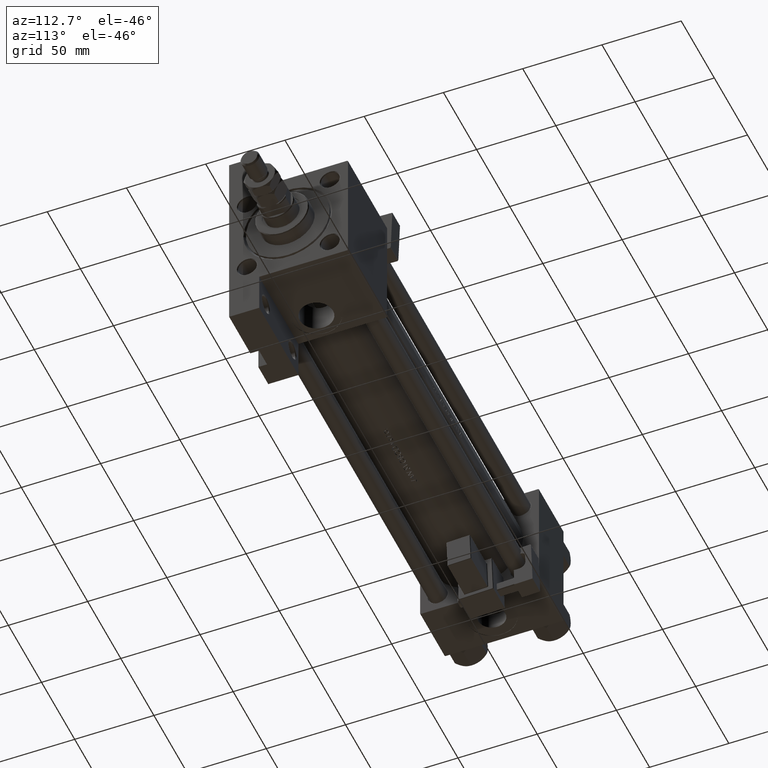
[diagram: clean part render]
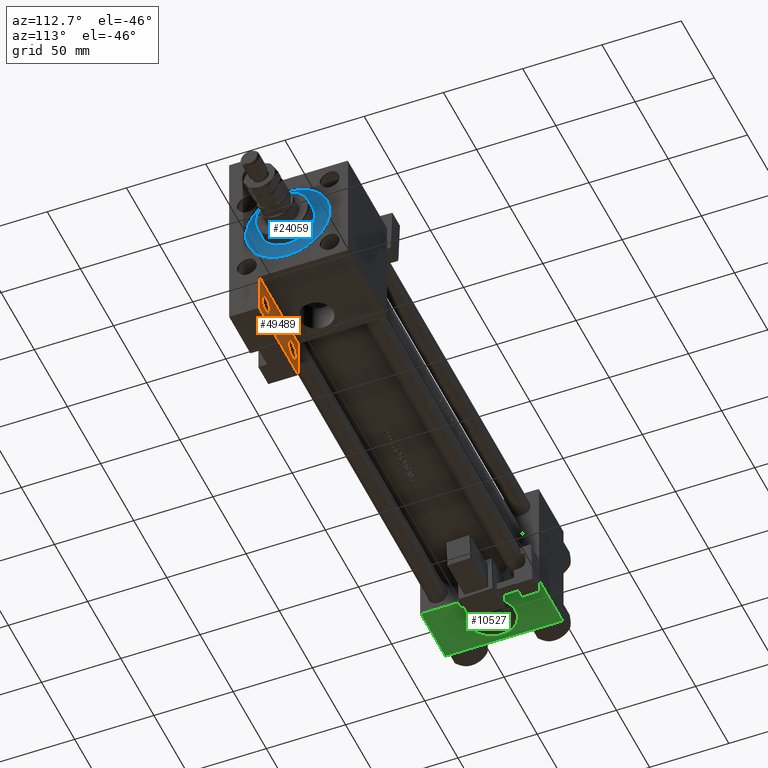
[diagram: same view with three faces highlighted in distinct colors, each labeled with its STEP entity id]
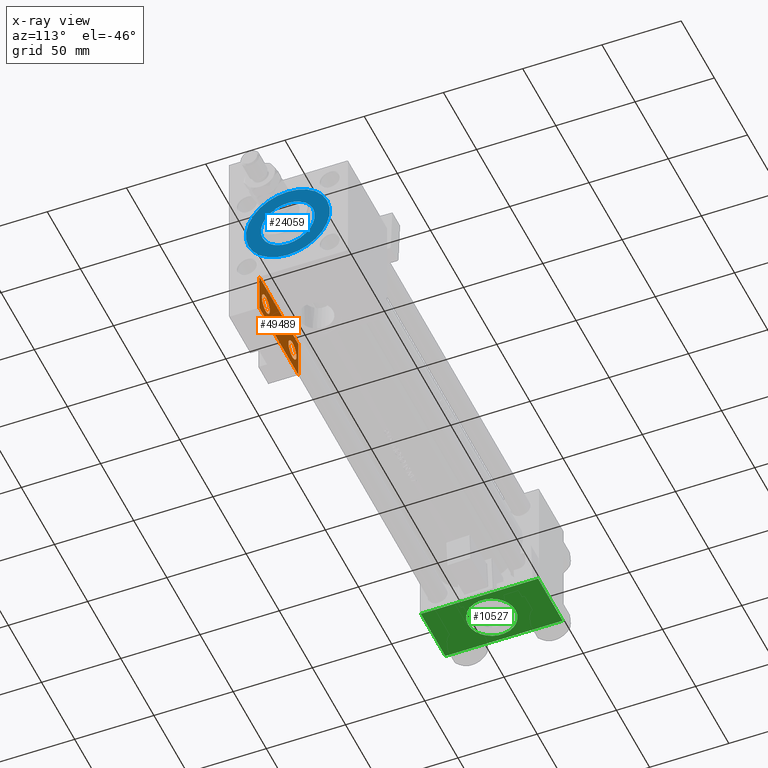
[diagram: x-ray of the same camera — body ghosted, the three highlighted faces saturated]
A machine part, auxiliary view with three faces highlighted in distinct colors.
The next image is the same camera in x-ray (body ghosted, the three faces saturated) — at least one of them is partly hidden behind the body in this view.
Their STEP definitions:

[orange] entity #49489 — the highlighted planar face has unit normal (0, 1, 0).
#210 = VERTEX_POINT ( 'NONE', #1415 ) ;
#214 = EDGE_LOOP ( 'NONE', ( #16590, #49962, #28782, #32486 ) ) ;
#592 = LINE ( 'NONE', #33071, #36383 ) ;
#792 = DIRECTION ( 'NONE',  ( -0.000000000000000000, -0.000000000000000000, -1.000000000000000000 ) ) ;
#1415 = CARTESIAN_POINT ( 'NONE',  ( 325.0000000000000000, 63.49999999999997158, -18.50000000000000000 ) ) ;
#2317 = VERTEX_POINT ( 'NONE', #5935 ) ;
#2687 = VERTEX_POINT ( 'NONE', #46944 ) ;
#4433 = FACE_BOUND ( 'NONE', #40984, .T. ) ;
#4503 = CARTESIAN_POINT ( 'NONE',  ( 266.0000000000000000, 37.50000000000000000, -18.50000000000000000 ) ) ;
#4984 = EDGE_CURVE ( 'NONE', #28397, #20545, #592, .T. ) ;
#5293 = VERTEX_POINT ( 'NONE', #31230 ) ;
#5679 = VERTEX_POINT ( 'NONE', #48553 ) ;
#5935 = CARTESIAN_POINT ( 'NONE',  ( 280.9995000000000118, 51.00000000000000711, -18.50000000000000000 ) ) ;
#7076 = ORIENTED_EDGE ( 'NONE', *, *, #15772, .T. ) ;
#8336 = CARTESIAN_POINT ( 'NONE',  ( 0.000000000000000000, 0.000000000000000000, -18.50000000000000000 ) ) ;
#8964 = AXIS2_PLACEMENT_3D ( 'NONE', #8336, #23698, #19281 ) ;
#9383 = AXIS2_PLACEMENT_3D ( 'NONE', #34515, #29830, #14769 ) ;
#9639 = CARTESIAN_POINT ( 'NONE',  ( 309.0004999999998745, 51.00000000000000000, -18.50000000000000000 ) ) ;
#11281 = AXIS2_PLACEMENT_3D ( 'NONE', #50661, #26743, #35325 ) ;
#11520 = CARTESIAN_POINT ( 'NONE',  ( 266.0000000000000000, 63.49999999999997158, -18.50000000000000000 ) ) ;
#13491 = CARTESIAN_POINT ( 'NONE',  ( 266.0000000000000000, 63.49999999999997158, -18.50000000000000000 ) ) ;
#14131 = ORIENTED_EDGE ( 'NONE', *, *, #40805, .T. ) ;
#14330 = VERTEX_POINT ( 'NONE', #9639 ) ;
#14769 = DIRECTION ( 'NONE',  ( 1.000000000000000000, 0.000000000000000000, 0.000000000000000000 ) ) ;
#14867 = EDGE_CURVE ( 'NONE', #210, #5293, #34797, .T. ) ;
#15462 = CIRCLE ( 'NONE', #26244, 5.999500000000046462 ) ;
#15647 = PLANE ( 'NONE',  #8964 ) ;
#15772 = EDGE_CURVE ( 'NONE', #5679, #14330, #25166, .T. ) ;
#15992 = DIRECTION ( 'NONE',  ( 0.000000000000000000, -1.000000000000000000, 0.000000000000000000 ) ) ;
#16590 = ORIENTED_EDGE ( 'NONE', *, *, #4984, .F. ) ;
#16755 = EDGE_LOOP ( 'NONE', ( #7076, #37712 ) ) ;
#19281 = DIRECTION ( 'NONE',  ( 1.000000000000000000, 0.000000000000000000, -0.000000000000000000 ) ) ;
#19346 = VECTOR ( 'NONE', #35466, 1000.000000000000000 ) ;
#20545 = VERTEX_POINT ( 'NONE', #11520 ) ;
#21290 = LINE ( 'NONE', #13491, #29747 ) ;
#21382 = ORIENTED_EDGE ( 'NONE', *, *, #40969, .T. ) ;
#21439 = AXIS2_PLACEMENT_3D ( 'NONE', #29094, #792, #44953 ) ;
#22270 = CARTESIAN_POINT ( 'NONE',  ( 266.0000000000000000, 37.50000000000000000, -18.50000000000000355 ) ) ;
#23698 = DIRECTION ( 'NONE',  ( 0.000000000000000000, 0.000000000000000000, 1.000000000000000000 ) ) ;
#24609 = EDGE_CURVE ( 'NONE', #5293, #28397, #47682, .T. ) ;
#25166 = CIRCLE ( 'NONE', #9383, 5.999500000000046462 ) ;
#26244 = AXIS2_PLACEMENT_3D ( 'NONE', #31239, #43192, #39286 ) ;
#26743 = DIRECTION ( 'NONE',  ( -0.000000000000000000, -0.000000000000000000, -1.000000000000000000 ) ) ;
#28397 = VERTEX_POINT ( 'NONE', #22270 ) ;
#28782 = ORIENTED_EDGE ( 'NONE', *, *, #14867, .F. ) ;
#29094 = CARTESIAN_POINT ( 'NONE',  ( 314.9999999999999432, 51.00000000000000000, -18.50000000000000000 ) ) ;
#29328 = DIRECTION ( 'NONE',  ( 1.000000000000000000, 0.000000000000000000, 0.000000000000000000 ) ) ;
#29747 = VECTOR ( 'NONE', #29328, 1000.000000000000000 ) ;
#29830 = DIRECTION ( 'NONE',  ( -0.000000000000000000, -0.000000000000000000, -1.000000000000000000 ) ) ;
#31230 = CARTESIAN_POINT ( 'NONE',  ( 325.0000000000000000, 37.49999999999996447, -18.50000000000000000 ) ) ;
#31239 = CARTESIAN_POINT ( 'NONE',  ( 274.9999999999999432, 51.00000000000000711, -18.50000000000000000 ) ) ;
#32486 = ORIENTED_EDGE ( 'NONE', *, *, #45759, .F. ) ;
#33071 = CARTESIAN_POINT ( 'NONE',  ( 266.0000000000000000, 63.49999999999997158, -18.50000000000000000 ) ) ;
#34515 = CARTESIAN_POINT ( 'NONE',  ( 314.9999999999999432, 51.00000000000000000, -18.50000000000000000 ) ) ;
#34797 = LINE ( 'NONE', #35747, #45662 ) ;
#35325 = DIRECTION ( 'NONE',  ( 1.000000000000000000, 0.000000000000000000, 0.000000000000000000 ) ) ;
#35466 = DIRECTION ( 'NONE',  ( -1.000000000000000000, 5.880418562633244990E-16, -0.000000000000000000 ) ) ;
#35561 = CIRCLE ( 'NONE', #21439, 5.999500000000046462 ) ;
#35747 = CARTESIAN_POINT ( 'NONE',  ( 325.0000000000000000, 63.49999999999997158, -18.50000000000000000 ) ) ;
#35947 = DIRECTION ( 'NONE',  ( -0.000000000000000000, 1.000000000000000000, -0.000000000000000000 ) ) ;
#36383 = VECTOR ( 'NONE', #35947, 1000.000000000000000 ) ;
#37712 = ORIENTED_EDGE ( 'NONE', *, *, #48920, .T. ) ;
#39286 = DIRECTION ( 'NONE',  ( 1.000000000000000000, 0.000000000000000000, 0.000000000000000000 ) ) ;
#40805 = EDGE_CURVE ( 'NONE', #2317, #2687, #15462, .T. ) ;
#40969 = EDGE_CURVE ( 'NONE', #2687, #2317, #50316, .T. ) ;
#40984 = EDGE_LOOP ( 'NONE', ( #14131, #21382 ) ) ;
#43192 = DIRECTION ( 'NONE',  ( -0.000000000000000000, -0.000000000000000000, -1.000000000000000000 ) ) ;
#43197 = FACE_BOUND ( 'NONE', #16755, .T. ) ;
#43952 = FACE_OUTER_BOUND ( 'NONE', #214, .T. ) ;
#44953 = DIRECTION ( 'NONE',  ( 1.000000000000000000, 0.000000000000000000, 0.000000000000000000 ) ) ;
#45662 = VECTOR ( 'NONE', #15992, 1000.000000000000000 ) ;
#45759 = EDGE_CURVE ( 'NONE', #20545, #210, #21290, .T. ) ;
#46944 = CARTESIAN_POINT ( 'NONE',  ( 269.0004999999999313, 51.00000000000000711, -18.50000000000000000 ) ) ;
#47682 = LINE ( 'NONE', #4503, #19346 ) ;
#48553 = CARTESIAN_POINT ( 'NONE',  ( 320.9995000000000118, 51.00000000000000000, -18.50000000000000000 ) ) ;
#48920 = EDGE_CURVE ( 'NONE', #14330, #5679, #35561, .T. ) ;
#49489 = ADVANCED_FACE ( 'NONE', ( #43197, #4433, #43952 ), #15647, .T. ) ;
#49962 = ORIENTED_EDGE ( 'NONE', *, *, #24609, .F. ) ;
#50316 = CIRCLE ( 'NONE', #11281, 5.999500000000046462 ) ;
#50661 = CARTESIAN_POINT ( 'NONE',  ( 274.9999999999999432, 51.00000000000000711, -18.50000000000000000 ) ) ;

[blue] entity #24059 — the highlighted planar face has unit normal (1, 0, 0).
#2054 = CIRCLE ( 'NONE', #21980, 17.00000000000000000 ) ;
#3723 = VERTEX_POINT ( 'NONE', #30493 ) ;
#5705 = DIRECTION ( 'NONE',  ( 1.000000000000000000, 0.000000000000000000, 0.000000000000000000 ) ) ;
#9928 = CARTESIAN_POINT ( 'NONE',  ( 0.000000000000000000, 0.000000000000000000, 28.69999999999999929 ) ) ;
#12735 = AXIS2_PLACEMENT_3D ( 'NONE', #45990, #37940, #5705 ) ;
#13209 = DIRECTION ( 'NONE',  ( 0.000000000000000000, 0.000000000000000000, 1.000000000000000000 ) ) ;
#13839 = DIRECTION ( 'NONE',  ( 0.000000000000000000, 0.000000000000000000, 1.000000000000000000 ) ) ;
#15235 = VERTEX_POINT ( 'NONE', #44330 ) ;
#15272 = CIRCLE ( 'NONE', #44300, 17.00000000000000000 ) ;
#15562 = VERTEX_POINT ( 'NONE', #18718 ) ;
#16344 = FACE_OUTER_BOUND ( 'NONE', #42362, .T. ) ;
#18177 = CARTESIAN_POINT ( 'NONE',  ( 0.000000000000000000, 0.000000000000000000, 28.69999999999999929 ) ) ;
#18718 = CARTESIAN_POINT ( 'NONE',  ( -26.50000000000000355, 0.000000000000000000, 28.69999999999999929 ) ) ;
#21980 = AXIS2_PLACEMENT_3D ( 'NONE', #18177, #34027, #46227 ) ;
#23001 = EDGE_CURVE ( 'NONE', #15562, #15235, #29314, .T. ) ;
#23422 = VERTEX_POINT ( 'NONE', #33213 ) ;
#24059 = ADVANCED_FACE ( 'NONE', ( #48310, #16344 ), #39743, .T. ) ;
#28530 = DIRECTION ( 'NONE',  ( 1.000000000000000000, 0.000000000000000000, 0.000000000000000000 ) ) ;
#28870 = ORIENTED_EDGE ( 'NONE', *, *, #23001, .T. ) ;
#29314 = CIRCLE ( 'NONE', #12735, 26.50000000000000355 ) ;
#29734 = ORIENTED_EDGE ( 'NONE', *, *, #48688, .T. ) ;
#30493 = CARTESIAN_POINT ( 'NONE',  ( -17.00000000000000000, 0.000000000000000000, 28.69999999999999929 ) ) ;
#33213 = CARTESIAN_POINT ( 'NONE',  ( 17.00000000000000000, 2.081899558550500280E-15, 28.69999999999999929 ) ) ;
#33629 = EDGE_LOOP ( 'NONE', ( #44709, #40978 ) ) ;
#34027 = DIRECTION ( 'NONE',  ( 0.000000000000000000, 0.000000000000000000, 1.000000000000000000 ) ) ;
#36059 = EDGE_CURVE ( 'NONE', #23422, #3723, #15272, .T. ) ;
#36093 = DIRECTION ( 'NONE',  ( 1.000000000000000000, 0.000000000000000000, -0.000000000000000000 ) ) ;
#37940 = DIRECTION ( 'NONE',  ( 0.000000000000000000, 0.000000000000000000, 1.000000000000000000 ) ) ;
#38137 = EDGE_CURVE ( 'NONE', #3723, #23422, #2054, .T. ) ;
#39093 = AXIS2_PLACEMENT_3D ( 'NONE', #44903, #13209, #36093 ) ;
#39743 = PLANE ( 'NONE',  #39093 ) ;
#40753 = DIRECTION ( 'NONE',  ( 0.000000000000000000, 0.000000000000000000, 1.000000000000000000 ) ) ;
#40978 = ORIENTED_EDGE ( 'NONE', *, *, #36059, .F. ) ;
#42362 = EDGE_LOOP ( 'NONE', ( #28870, #29734 ) ) ;
#44300 = AXIS2_PLACEMENT_3D ( 'NONE', #48067, #40753, #28530 ) ;
#44330 = CARTESIAN_POINT ( 'NONE',  ( 26.50000000000000355, 3.245314017740486554E-15, 28.69999999999999929 ) ) ;
#44709 = ORIENTED_EDGE ( 'NONE', *, *, #38137, .F. ) ;
#44903 = CARTESIAN_POINT ( 'NONE',  ( 0.000000000000000000, 0.000000000000000000, 28.69999999999999929 ) ) ;
#45457 = CIRCLE ( 'NONE', #51319, 26.50000000000000355 ) ;
#45990 = CARTESIAN_POINT ( 'NONE',  ( 0.000000000000000000, 0.000000000000000000, 28.69999999999999929 ) ) ;
#46227 = DIRECTION ( 'NONE',  ( 1.000000000000000000, 0.000000000000000000, 0.000000000000000000 ) ) ;
#47092 = DIRECTION ( 'NONE',  ( 1.000000000000000000, 0.000000000000000000, 0.000000000000000000 ) ) ;
#48067 = CARTESIAN_POINT ( 'NONE',  ( 0.000000000000000000, 0.000000000000000000, 28.69999999999999929 ) ) ;
#48310 = FACE_BOUND ( 'NONE', #33629, .T. ) ;
#48688 = EDGE_CURVE ( 'NONE', #15235, #15562, #45457, .T. ) ;
#51319 = AXIS2_PLACEMENT_3D ( 'NONE', #9928, #13839, #47092 ) ;

[green] entity #10527 — the highlighted planar face has unit normal (0, 0, -1).
#375 = DIRECTION ( 'NONE',  ( 0.000000000000000000, 0.000000000000000000, -1.000000000000000000 ) ) ;
#1022 = DIRECTION ( 'NONE',  ( 1.000000000000000000, 0.000000000000000000, 0.000000000000000000 ) ) ;
#3061 = FACE_BOUND ( 'NONE', #41111, .T. ) ;
#4362 = CARTESIAN_POINT ( 'NONE',  ( 18.50000000000000000, 37.49999999999999289, 15.00000000000000178 ) ) ;
#5039 = CARTESIAN_POINT ( 'NONE',  ( 37.00000000000000000, 37.49999999999999289, 37.00000000000000000 ) ) ;
#6778 = ORIENTED_EDGE ( 'NONE', *, *, #21809, .T. ) ;
#7168 = CIRCLE ( 'NONE', #44519, 15.00000000000000178 ) ;
#9720 = DIRECTION ( 'NONE',  ( 0.000000000000000000, 0.000000000000000000, -1.000000000000000000 ) ) ;
#10225 = CARTESIAN_POINT ( 'NONE',  ( 37.00000000000000000, 37.49999999999999289, -36.99999999999998579 ) ) ;
#10527 = ADVANCED_FACE ( 'NONE', ( #3061, #31133 ), #15030, .T. ) ;
#12761 = VECTOR ( 'NONE', #375, 1000.000000000000000 ) ;
#14308 = LINE ( 'NONE', #29618, #24813 ) ;
#15030 = PLANE ( 'NONE',  #32721 ) ;
#16088 = AXIS2_PLACEMENT_3D ( 'NONE', #49510, #41700, #38832 ) ;
#16174 = EDGE_CURVE ( 'NONE', #38722, #27665, #48202, .T. ) ;
#16626 = LINE ( 'NONE', #20528, #17495 ) ;
#17495 = VECTOR ( 'NONE', #1022, 1000.000000000000000 ) ;
#19580 = EDGE_LOOP ( 'NONE', ( #38305, #6778, #46597, #19595 ) ) ;
#19595 = ORIENTED_EDGE ( 'NONE', *, *, #26945, .T. ) ;
#19961 = CARTESIAN_POINT ( 'NONE',  ( 0.000000000000000000, 37.49999999999999289, -36.99999999999998579 ) ) ;
#20528 = CARTESIAN_POINT ( 'NONE',  ( 37.00000000000000000, 37.49999999999999289, 37.00000000000000000 ) ) ;
#21008 = CARTESIAN_POINT ( 'NONE',  ( 18.50000000000000355, 37.49999999999999289, -15.00000000000000178 ) ) ;
#21809 = EDGE_CURVE ( 'NONE', #27665, #38184, #14308, .T. ) ;
#23076 = DIRECTION ( 'NONE',  ( -0.000000000000000000, 1.000000000000000000, 0.000000000000000000 ) ) ;
#23130 = VECTOR ( 'NONE', #9720, 1000.000000000000000 ) ;
#23550 = CIRCLE ( 'NONE', #16088, 15.00000000000000178 ) ;
#23832 = CARTESIAN_POINT ( 'NONE',  ( 18.50000000000000000, 37.49999999999999289, 0.000000000000000000 ) ) ;
#24813 = VECTOR ( 'NONE', #50155, 1000.000000000000000 ) ;
#26945 = EDGE_CURVE ( 'NONE', #42717, #38722, #16626, .T. ) ;
#27222 = CARTESIAN_POINT ( 'NONE',  ( 37.00000000000000000, 37.49999999999999289, 37.50000000000000000 ) ) ;
#27665 = VERTEX_POINT ( 'NONE', #10225 ) ;
#28776 = CARTESIAN_POINT ( 'NONE',  ( 0.000000000000000000, 37.49999999999999289, 37.00000000000000000 ) ) ;
#29618 = CARTESIAN_POINT ( 'NONE',  ( 37.00000000000000000, 37.49999999999999289, -36.99999999999998579 ) ) ;
#29977 = CARTESIAN_POINT ( 'NONE',  ( 0.000000000000000000, 37.49999999999999289, 37.50000000000000000 ) ) ;
#31133 = FACE_OUTER_BOUND ( 'NONE', #19580, .T. ) ;
#31633 = DIRECTION ( 'NONE',  ( 0.000000000000000000, 1.000000000000000000, 0.000000000000000000 ) ) ;
#32284 = EDGE_CURVE ( 'NONE', #44747, #35129, #23550, .T. ) ;
#32721 = AXIS2_PLACEMENT_3D ( 'NONE', #27222, #23076, #35285 ) ;
#33910 = LINE ( 'NONE', #29977, #23130 ) ;
#35129 = VERTEX_POINT ( 'NONE', #4362 ) ;
#35285 = DIRECTION ( 'NONE',  ( 0.000000000000000000, -0.000000000000000000, 1.000000000000000000 ) ) ;
#38184 = VERTEX_POINT ( 'NONE', #19961 ) ;
#38305 = ORIENTED_EDGE ( 'NONE', *, *, #16174, .T. ) ;
#38306 = ORIENTED_EDGE ( 'NONE', *, *, #32284, .F. ) ;
#38722 = VERTEX_POINT ( 'NONE', #5039 ) ;
#38832 = DIRECTION ( 'NONE',  ( 0.000000000000000000, 0.000000000000000000, 1.000000000000000000 ) ) ;
#39800 = ORIENTED_EDGE ( 'NONE', *, *, #42293, .F. ) ;
#40647 = CARTESIAN_POINT ( 'NONE',  ( 37.00000000000000000, 37.49999999999999289, 37.50000000000000000 ) ) ;
#41111 = EDGE_LOOP ( 'NONE', ( #39800, #38306 ) ) ;
#41700 = DIRECTION ( 'NONE',  ( 0.000000000000000000, 1.000000000000000000, 0.000000000000000000 ) ) ;
#42293 = EDGE_CURVE ( 'NONE', #35129, #44747, #7168, .T. ) ;
#42717 = VERTEX_POINT ( 'NONE', #28776 ) ;
#44519 = AXIS2_PLACEMENT_3D ( 'NONE', #23832, #31633, #47751 ) ;
#44747 = VERTEX_POINT ( 'NONE', #21008 ) ;
#46212 = EDGE_CURVE ( 'NONE', #42717, #38184, #33910, .T. ) ;
#46597 = ORIENTED_EDGE ( 'NONE', *, *, #46212, .F. ) ;
#47751 = DIRECTION ( 'NONE',  ( 0.000000000000000000, 0.000000000000000000, 1.000000000000000000 ) ) ;
#48202 = LINE ( 'NONE', #40647, #12761 ) ;
#49510 = CARTESIAN_POINT ( 'NONE',  ( 18.50000000000000000, 37.49999999999999289, 0.000000000000000000 ) ) ;
#50155 = DIRECTION ( 'NONE',  ( -1.000000000000000000, 0.000000000000000000, 0.000000000000000000 ) ) ;